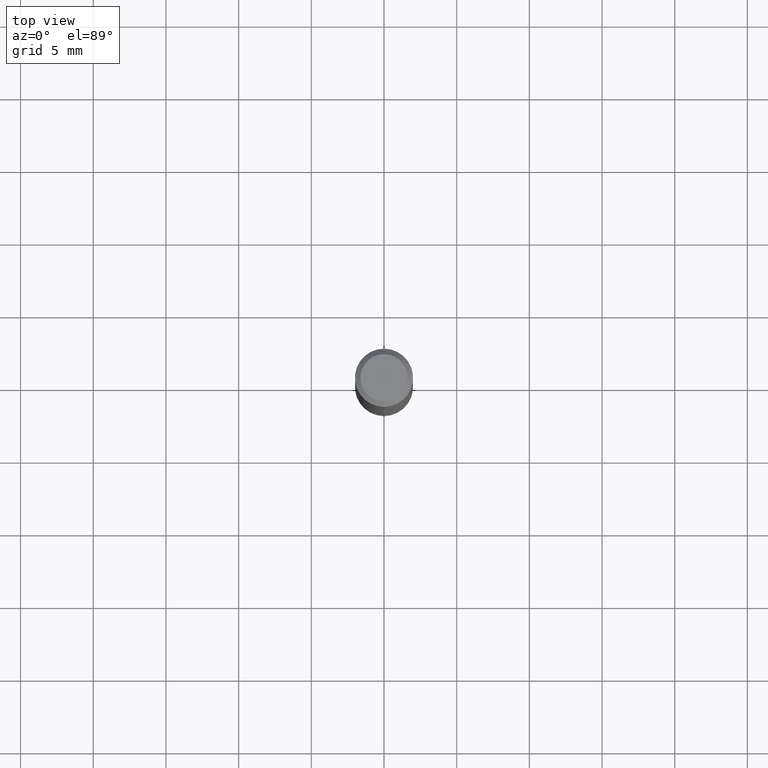
[diagram: clean part render]
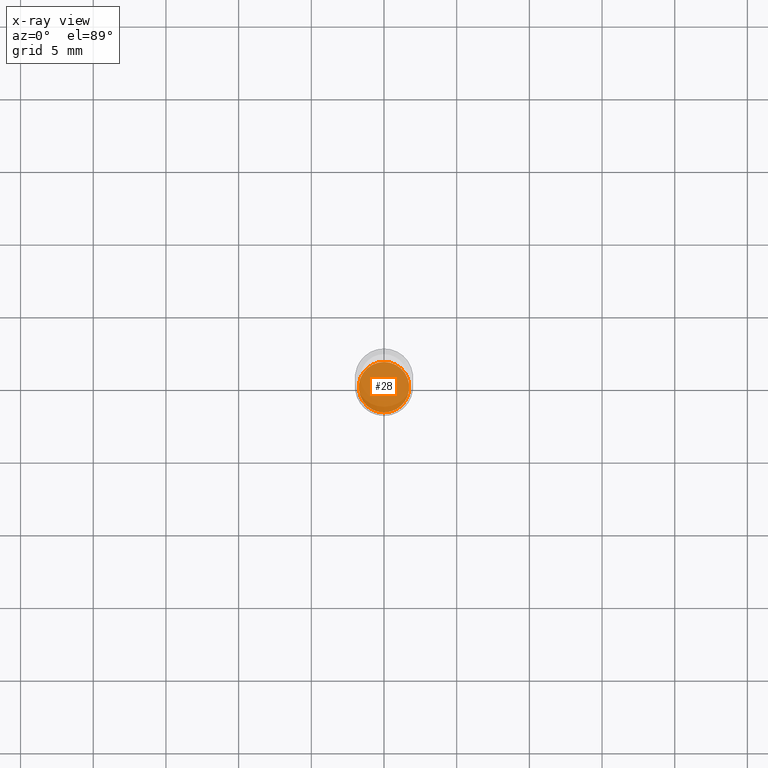
[diagram: x-ray — body ghosted, one internal face saturated and labeled with its STEP entity id]
A machine part, top view, then the same camera in x-ray: the body is ghosted and one INTERNAL B-rep face — a face not visible from any outside direction — is saturated and labeled: STEP entity #28.
In plain terms, the highlighted planar face has unit normal (-0, 0, 1).
Its self-contained STEP definition (entity closure, byte-faithful):
#28 = ADVANCED_FACE ( 'NONE', ( #187 ), #383, .F. ) ;
#30 = DIRECTION ( 'NONE',  ( -6.982962677686265922E-15, -1.000000000000000000, 3.490852318197870426E-15 ) ) ;
#50 = EDGE_CURVE ( 'NONE', #314, #434, #507, .T. ) ;
#53 = ORIENTED_EDGE ( 'NONE', *, *, #275, .F. ) ;
#70 = DIRECTION ( 'NONE',  ( -2.445908048954081787E-29, 3.490852318197870426E-15, 1.000000000000000000 ) ) ;
#75 = AXIS2_PLACEMENT_3D ( 'NONE', #425, #500, #30 ) ;
#77 = CIRCLE ( 'NONE', #445, 0.06840000000000005798 ) ;
#96 = DIRECTION ( 'NONE',  ( -2.445908048954081787E-29, 3.490852318197870426E-15, 1.000000000000000000 ) ) ;
#141 = AXIS2_PLACEMENT_3D ( 'NONE', #511, #70, #378 ) ;
#187 = FACE_OUTER_BOUND ( 'NONE', #400, .T. ) ;
#217 = DIRECTION ( 'NONE',  ( -6.982962677686266711E-15, -1.000000000000000000, 3.993929815298627073E-15 ) ) ;
#275 = EDGE_CURVE ( 'NONE', #434, #314, #77, .T. ) ;
#314 = VERTEX_POINT ( 'NONE', #382 ) ;
#325 = ORIENTED_EDGE ( 'NONE', *, *, #50, .F. ) ;
#345 = CARTESIAN_POINT ( 'NONE',  ( 3.659323032040201153E-29, -5.222664153255832866E-15, -1.496099999999999985 ) ) ;
#353 = CARTESIAN_POINT ( 'NONE',  ( 4.877875880993454787E-16, 0.06839999999999483993, -1.496100000000000207 ) ) ;
#378 = DIRECTION ( 'NONE',  ( -6.982962677686266711E-15, -1.000000000000000000, 3.993929815298627073E-15 ) ) ;
#382 = CARTESIAN_POINT ( 'NONE',  ( -4.776346471537044438E-16, -0.06840000000000528990, -1.496099999999999541 ) ) ;
#383 = PLANE ( 'NONE',  #75 ) ;
#400 = EDGE_LOOP ( 'NONE', ( #325, #53 ) ) ;
#425 = CARTESIAN_POINT ( 'NONE',  ( 3.659323032040201153E-29, -5.222664153255832866E-15, -1.496099999999999985 ) ) ;
#434 = VERTEX_POINT ( 'NONE', #353 ) ;
#445 = AXIS2_PLACEMENT_3D ( 'NONE', #345, #96, #217 ) ;
#500 = DIRECTION ( 'NONE',  ( -2.445908048954081227E-29, 3.490852318197870426E-15, 1.000000000000000000 ) ) ;
#507 = CIRCLE ( 'NONE', #141, 0.06840000000000005798 ) ;
#511 = CARTESIAN_POINT ( 'NONE',  ( 3.659323032040201153E-29, -5.222664153255832866E-15, -1.496099999999999985 ) ) ;